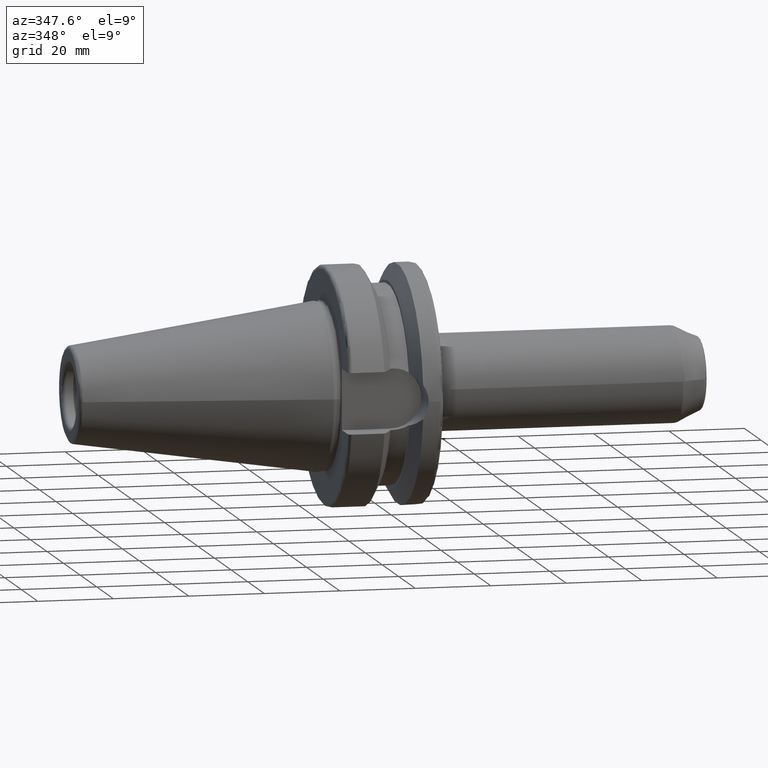
[diagram: clean part render]
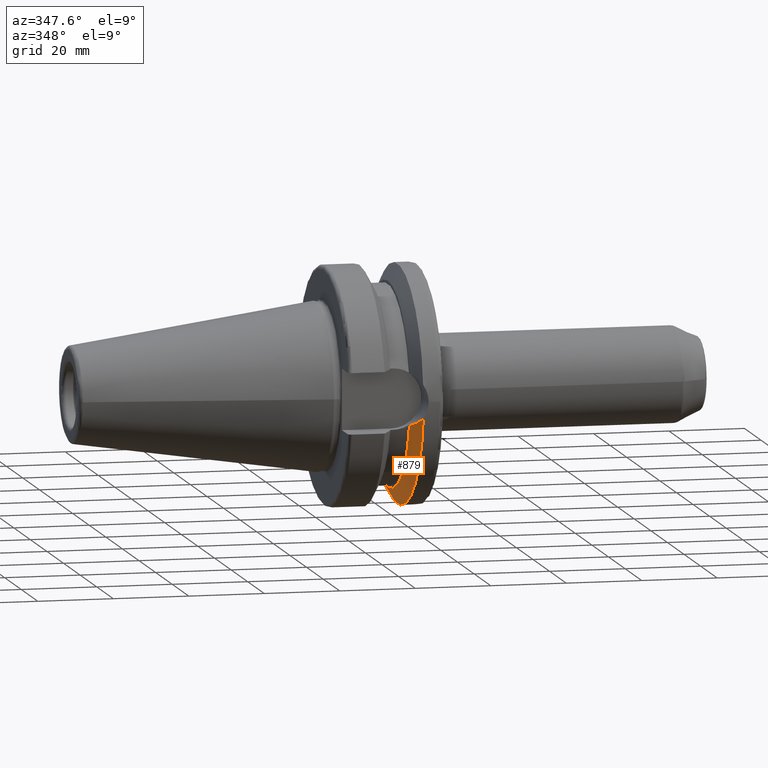
[diagram: same view with one face highlighted and labeled with its STEP entity id]
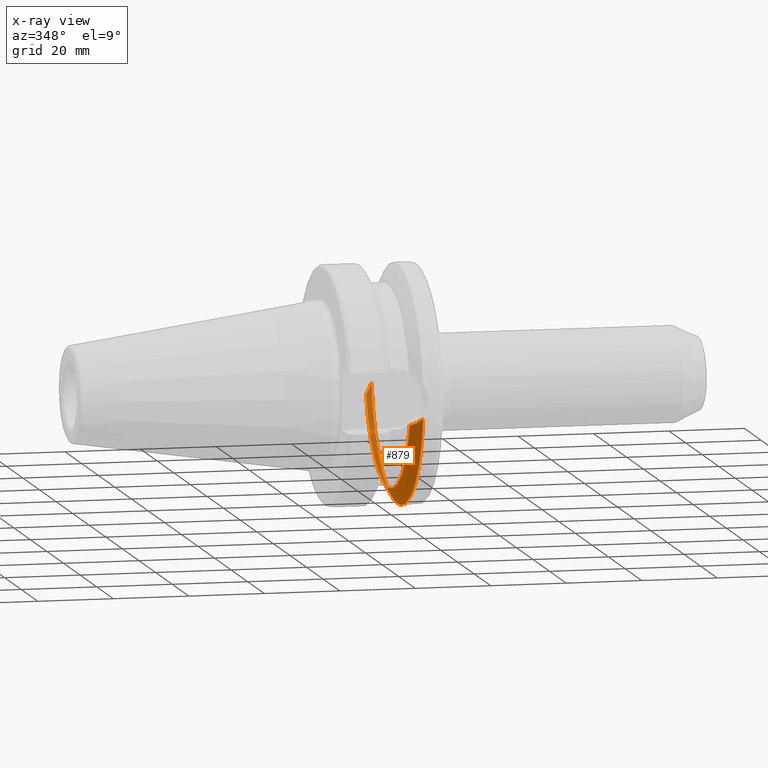
[diagram: x-ray of the same camera — body ghosted, the highlighted face saturated]
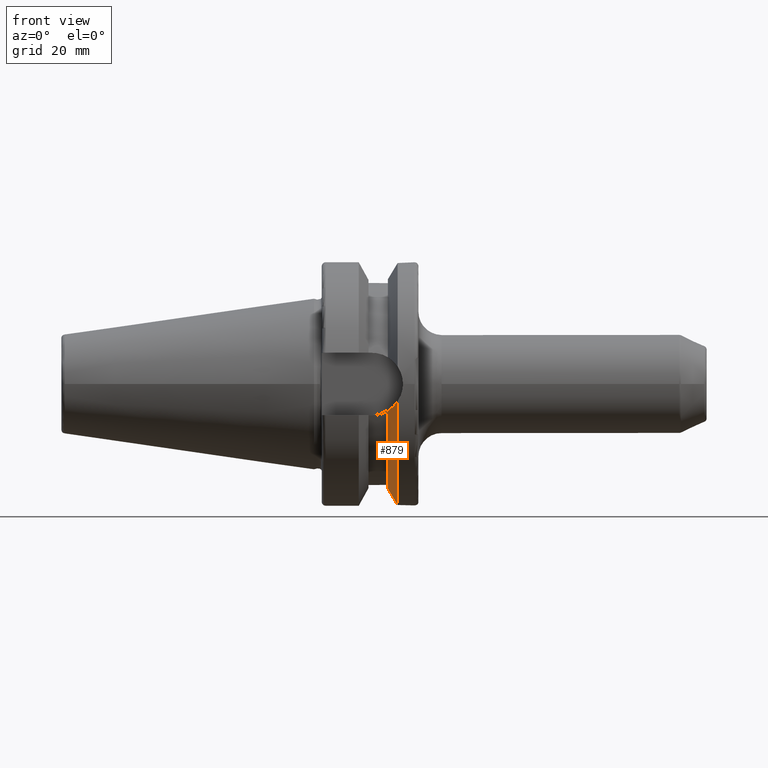
[diagram: same view with one face highlighted and labeled with its STEP entity id]
A machine part, auxiliary view. The second image highlights one B-rep face of the part: STEP entity #879.
The next image is the same camera in x-ray: the body ghosted, the highlighted face saturated — about 28% of this face is hidden behind the body in this view.
A second angle (front view) of the same face is appended — the face is thin or edge-on in the first view.
In plain terms, the highlighted conical surface has half-angle 60.125 deg.
Its self-contained STEP definition (entity closure, byte-faithful):
#24=CONICAL_SURFACE('',#985,29.2970358274569,1.0493792127616);
#39=B_SPLINE_CURVE_WITH_KNOTS('',3,(#1514,#1515,#1516,#1517,#1518,#1519),
 .UNSPECIFIED.,.F.,.F.,(4,2,4),(3.12975744792551,3.6269928875698,3.7084873746139),
 .UNSPECIFIED.);
#47=B_SPLINE_CURVE_WITH_KNOTS('',3,(#1630,#1631,#1632,#1633,#1634,#1635),
 .UNSPECIFIED.,.F.,.F.,(4,2,4),(1.46421027899563,1.54570476603974,2.04294020568402),
 .UNSPECIFIED.);
#201=FACE_OUTER_BOUND('',#257,.T.);
#257=EDGE_LOOP('',(#698,#699,#700,#701));
#319=CIRCLE('',#982,31.5);
#322=CIRCLE('',#986,27.0940716549138);
#384=VERTEX_POINT('',#1511);
#385=VERTEX_POINT('',#1513);
#407=VERTEX_POINT('',#1612);
#409=VERTEX_POINT('',#1628);
#486=EDGE_CURVE('',#385,#384,#39,.T.);
#512=EDGE_CURVE('',#385,#407,#319,.T.);
#516=EDGE_CURVE('',#384,#409,#322,.T.);
#517=EDGE_CURVE('',#409,#407,#47,.T.);
#698=ORIENTED_EDGE('',*,*,#486,.T.);
#699=ORIENTED_EDGE('',*,*,#516,.T.);
#700=ORIENTED_EDGE('',*,*,#517,.T.);
#701=ORIENTED_EDGE('',*,*,#512,.F.);
#879=ADVANCED_FACE('',(#201),#24,.T.);
#982=AXIS2_PLACEMENT_3D('',#1613,#1173,#1174);
#985=AXIS2_PLACEMENT_3D('',#1627,#1179,#1180);
#986=AXIS2_PLACEMENT_3D('',#1629,#1181,#1182);
#1173=DIRECTION('center_axis',(1.,0.,0.));
#1174=DIRECTION('ref_axis',(0.,0.,-1.));
#1179=DIRECTION('center_axis',(1.,0.,0.));
#1180=DIRECTION('ref_axis',(0.,1.,0.));
#1181=DIRECTION('center_axis',(1.,0.,0.));
#1182=DIRECTION('ref_axis',(0.,0.,-1.));
#1511=CARTESIAN_POINT('',(19.1,-26.201311395455,-6.89782574439221));
#1513=CARTESIAN_POINT('',(21.6309636926618,-31.1782420264945,-4.49079326370462));
#1514=CARTESIAN_POINT('Ctrl Pts',(21.6309636926618,-31.1782420264945,-4.49079326370461));
#1515=CARTESIAN_POINT('Ctrl Pts',(20.9728756148302,-29.8797957262939,-5.46983244373119));
#1516=CARTESIAN_POINT('Ctrl Pts',(20.1784155384866,-28.3157123387483,-6.1823136897693));
#1517=CARTESIAN_POINT('Ctrl Pts',(19.3406963650696,-26.6728819297427,-6.74867108656043));
#1518=CARTESIAN_POINT('Ctrl Pts',(19.2210929544554,-26.438473693351,-6.82497151762397));
#1519=CARTESIAN_POINT('Ctrl Pts',(19.1,-26.201311395455,-6.89782574439222));
#1612=CARTESIAN_POINT('',(21.6309636926618,31.1782420264945,-4.49079326370462));
#1613=CARTESIAN_POINT('Origin',(21.6309636926618,0.,0.));
#1627=CARTESIAN_POINT('Origin',(20.3654818463309,0.,0.));
#1628=CARTESIAN_POINT('',(19.1,26.201311395455,-6.89782574439221));
#1629=CARTESIAN_POINT('Origin',(19.1,0.,0.));
#1630=CARTESIAN_POINT('Ctrl Pts',(19.1,26.201311395455,-6.89782574439221));
#1631=CARTESIAN_POINT('Ctrl Pts',(19.2210929544554,26.438473693351,-6.82497151762396));
#1632=CARTESIAN_POINT('Ctrl Pts',(19.3406963650696,26.6728819297427,-6.74867108656043));
#1633=CARTESIAN_POINT('Ctrl Pts',(20.1784155384866,28.3157123387483,-6.1823136897693));
#1634=CARTESIAN_POINT('Ctrl Pts',(20.9728756148302,29.8797957262938,-5.46983244373119));
#1635=CARTESIAN_POINT('Ctrl Pts',(21.6309636926618,31.1782420264945,-4.49079326370462));